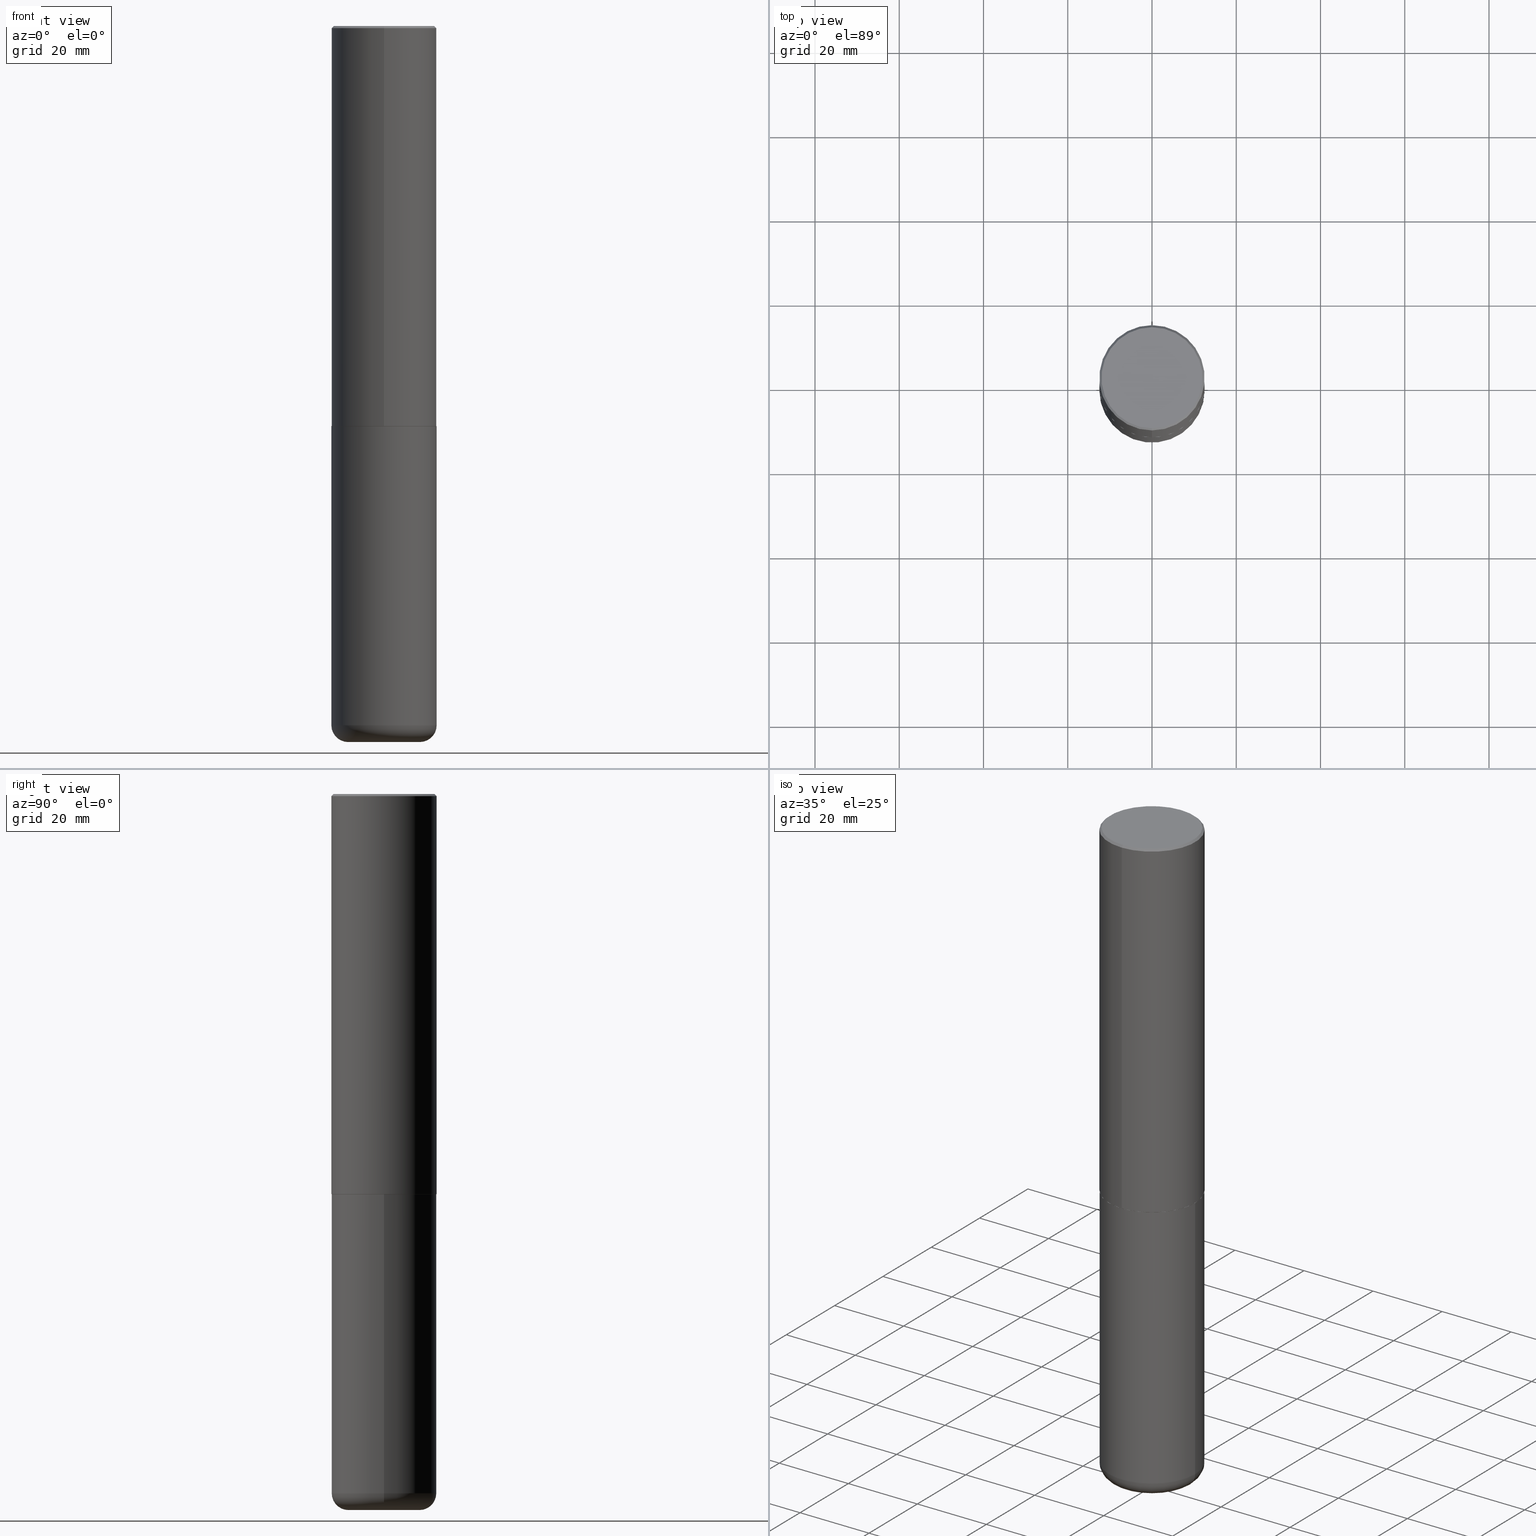
[diagram: canonical four-view strip — front | top / right | iso, engineering-drawing reading convention]
A machine part, canonical four-view strip (front | top / right | iso — engineering-drawing reading convention). The complete STEP part file that produces these views, byte-faithful:
ISO-10303-21;
HEADER;
FILE_DESCRIPTION (( 'STEP AP203' ),
    '1' );
FILE_NAME ('47629.STEP',
    '2024-03-06T19:43:41',
    ( '' ),
    ( '' ),
    'SwSTEP 2.0',
    'SolidWorks 2023',
    '' );
FILE_SCHEMA (( 'CONFIG_CONTROL_DESIGN' ));
ENDSEC;

DATA;
#1 = VERTEX_POINT ( 'NONE', #140 ) ;
#2 = CIRCLE ( 'NONE', #259, 0.4921500000000003650 ) ;
#3 = ORIENTED_EDGE ( 'NONE', *, *, #57, .F. ) ;
#4 = DIRECTION ( 'NONE',  ( -6.982962677686265922E-15, -1.000000000000000000, 3.337287582609300506E-15 ) ) ;
#5 = FACE_OUTER_BOUND ( 'NONE', #368, .T. ) ;
#6 = AXIS2_PLACEMENT_3D ( 'NONE', #393, #176, #395 ) ;
#7 = CIRCLE ( 'NONE', #226, 0.4921499999999999764 ) ;
#8 = EDGE_CURVE ( 'NONE', #254, #222, #314, .T. ) ;
#9 = DIRECTION ( 'NONE',  ( -2.445468806185136597E-29, 3.491481338843145583E-15, 1.000000000000000000 ) ) ;
#10 =( GEOMETRIC_REPRESENTATION_CONTEXT ( 3 ) GLOBAL_UNCERTAINTY_ASSIGNED_CONTEXT ( ( #92 ) ) GLOBAL_UNIT_ASSIGNED_CONTEXT ( ( #315, #375, #111 ) ) REPRESENTATION_CONTEXT ( 'NONE', 'WORKASPACE' ) );
#11 = CARTESIAN_POINT ( 'NONE',  ( 9.148197060908621523E-29, -1.305576962313420868E-14, -3.740099999999999980 ) ) ;
#12 = DIRECTION ( 'NONE',  ( -6.982962677686265922E-15, -1.000000000000000000, 3.337287582609300506E-15 ) ) ;
#13 = APPROVAL ( #158, 'UNSPECIFIED' ) ;
#14 = DIRECTION ( 'NONE',  ( -2.445468806185136597E-29, 3.491481338843145583E-15, 1.000000000000000000 ) ) ;
#15 = DIRECTION ( 'NONE',  ( -4.937700262167413974E-15, -0.7071067811869555797, 0.7071067811861394548 ) ) ;
#16 = DIRECTION ( 'NONE',  ( 5.024295867790978808E-15, 0.7071067811869604647, 0.7071067811861345698 ) ) ;
#17 = CIRCLE ( 'NONE', #252, 0.4721499999999996255 ) ;
#18 = ADVANCED_FACE ( 'NONE', ( #391 ), #272, .T. ) ;
#19 = DIRECTION ( 'NONE',  ( -6.982962677686265922E-15, -1.000000000000000000, 3.486624039460257331E-15 ) ) ;
#20 = PERSON_AND_ORGANIZATION ( #46, #76 ) ;
#21 = DIRECTION ( 'NONE',  ( -2.445976594451651952E-29, 3.490754157143982552E-15, 1.000000000000000000 ) ) ;
#22 = SECURITY_CLASSIFICATION_LEVEL ( 'unclassified' ) ;
#23 = CARTESIAN_POINT ( 'NONE',  ( 0.4921499999999999764, -1.649515443723054663E-14, -3.740100000000000424 ) ) ;
#24 = CARTESIAN_POINT ( 'NONE',  ( 1.598211683594234343E-28, -2.281822714187549288E-14, -6.535400000000000098 ) ) ;
#25 = APPROVAL_DATE_TIME ( #378, #13 ) ;
#26 = EDGE_CURVE ( 'NONE', #62, #165, #193, .T. ) ;
#27 = ADVANCED_FACE ( 'NONE', ( #206 ), #151, .T. ) ;
#28 = ORIENTED_EDGE ( 'NONE', *, *, #236, .T. ) ;
#29 = AXIS2_PLACEMENT_3D ( 'NONE', #225, #144, #388 ) ;
#30 = ADVANCED_FACE ( 'NONE', ( #361 ), #72, .T. ) ;
#31 = EDGE_LOOP ( 'NONE', ( #3, #386, #28, #380 ) ) ;
#32 = EDGE_LOOP ( 'NONE', ( #292, #293, #229, #114 ) ) ;
#33 = ORIENTED_EDGE ( 'NONE', *, *, #208, .T. ) ;
#34 = AXIS2_PLACEMENT_3D ( 'NONE', #283, #121, #413 ) ;
#35 = VERTEX_POINT ( 'NONE', #398 ) ;
#36 = ADVANCED_FACE ( 'NONE', ( #203 ), #282, .T. ) ;
#37 = CARTESIAN_POINT ( 'NONE',  ( 0.4921499999999999764, -2.625489222369879024E-14, -6.535400000000000098 ) ) ;
#38 = MANIFOLD_SOLID_BREP ( 'Body-Move/Copy2[1]', #289 ) ;
#39 = FACE_OUTER_BOUND ( 'NONE', #127, .T. ) ;
#40 = DIRECTION ( 'NONE',  ( -2.445976594451651952E-29, 3.490754157143982552E-15, 1.000000000000000000 ) ) ;
#41 = DIRECTION ( 'NONE',  ( 1.000000000000000000, 0.000000000000000000, 0.000000000000000000 ) ) ;
#42 = MANIFOLD_SOLID_BREP ( 'Body-Move/Copy2[2]', #74 ) ;
#43 = AXIS2_PLACEMENT_3D ( 'NONE', #401, #215, #182 ) ;
#44 = EDGE_CURVE ( 'NONE', #35, #353, #246, .T. ) ;
#45 = DIRECTION ( 'NONE',  ( -2.445468806185136597E-29, 3.491481338843145583E-15, 1.000000000000000000 ) ) ;
#46 = PERSON ( 'UNSPECIFIED', 'UNSPECIFIED', 'UNSPECIFIED', ('UNSPECIFIED'), ('UNSPECIFIED'), ('UNSPECIFIED') ) ;
#47 = CARTESIAN_POINT ( 'NONE',  ( 0.000000000000000000, 0.000000000000000000, 0.000000000000000000 ) ) ;
#48 = CARTESIAN_POINT ( 'NONE',  ( 9.148197060908621523E-29, -1.305576962313420868E-14, -3.740099999999999980 ) ) ;
#49 = APPROVAL ( #354, 'UNSPECIFIED' ) ;
#50 = DIRECTION ( 'NONE',  ( -2.445976594451651952E-29, 3.490754157143982552E-15, 1.000000000000000000 ) ) ;
#51 = AXIS2_PLACEMENT_3D ( 'NONE', #267, #363, #77 ) ;
#52 = EDGE_LOOP ( 'NONE', ( #230, #160, #227, #196 ) ) ;
#53 = DIRECTION ( 'NONE',  ( 7.105427357601001859E-15, 1.000000000000000000, -3.491481338843145583E-15 ) ) ;
#54 = PERSON_AND_ORGANIZATION ( #46, #76 ) ;
#55 = FACE_OUTER_BOUND ( 'NONE', #416, .T. ) ;
#56 = COORDINATED_UNIVERSAL_TIME_OFFSET ( 5, 0, .BEHIND. ) ;
#57 = EDGE_CURVE ( 'NONE', #307, #1, #105, .T. ) ;
#58 = CARTESIAN_POINT ( 'NONE',  ( -0.3346499999999999475, -2.044039587665432153E-14, -6.535400000000000098 ) ) ;
#59 = APPLICATION_PROTOCOL_DEFINITION ( 'international standard', 'config_control_design', 1994, #137 ) ;
#60 = ORIENTED_EDGE ( 'NONE', *, *, #320, .T. ) ;
#61 = PERSON_AND_ORGANIZATION_ROLE ( 'creator' ) ;
#62 = VERTEX_POINT ( 'NONE', #103 ) ;
#63 = ORIENTED_EDGE ( 'NONE', *, *, #236, .F. ) ;
#64 = EDGE_LOOP ( 'NONE', ( #33, #260 ) ) ;
#65 = APPROVAL ( #87, 'UNSPECIFIED' ) ;
#66 = ORIENTED_EDGE ( 'NONE', *, *, #255, .T. ) ;
#67 = DIRECTION ( 'NONE',  ( -2.445468806185136597E-29, 3.491481338843145583E-15, 1.000000000000000000 ) ) ;
#68 = CIRCLE ( 'NONE', #104, 0.4921499999999999209 ) ;
#69 = LOCAL_TIME ( 14, 43, 41.00000000000000000, #250 ) ;
#70 = DIRECTION ( 'NONE',  ( 1.000000000000000000, -6.982962677686268288E-15, 4.883557194083113462E-29 ) ) ;
#71 = CARTESIAN_POINT ( 'NONE',  ( 9.145751084314172604E-29, -1.305227886897706845E-14, -3.739100000000000534 ) ) ;
#72 = CYLINDRICAL_SURFACE ( 'NONE', #290, 0.4921499999999999764 ) ;
#73 = DIRECTION ( 'NONE',  ( -6.982962677686265922E-15, -1.000000000000000000, 3.490754157143982552E-15 ) ) ;
#74 = CLOSED_SHELL ( 'NONE', ( #383, #18, #389, #170, #120, #27, #418, #239 ) ) ;
#75 = VECTOR ( 'NONE', #408, 39.37007874015748143 ) ;
#76 = ORGANIZATION ( 'UNSPECIFIED', 'UNSPECIFIED', '' ) ;
#77 = DIRECTION ( 'NONE',  ( 1.000000000000000000, -6.982962677686265133E-15, 0.000000000000000000 ) ) ;
#78 = CYLINDRICAL_SURFACE ( 'NONE', #117, 0.4921500000000000874 ) ;
#79 = PERSON_AND_ORGANIZATION ( #46, #76 ) ;
#80 = LINE ( 'NONE', #285, #75 ) ;
#81 = DIMENSIONAL_EXPONENTS ( 1.000000000000000000, 0.000000000000000000, 0.000000000000000000, 0.000000000000000000, 0.000000000000000000, 0.000000000000000000, 0.000000000000000000 ) ;
#82 = ORIENTED_EDGE ( 'NONE', *, *, #168, .F. ) ;
#83 = CALENDAR_DATE ( 2024, 6, 3 ) ;
#84 = CARTESIAN_POINT ( 'NONE',  ( 3.489830646685823002E-15, 0.4911499999999869304, -3.740100000000001312 ) ) ;
#85 = AXIS2_PLACEMENT_3D ( 'NONE', #338, #14, #400 ) ;
#86 = PRODUCT_DEFINITION_FORMATION_WITH_SPECIFIED_SOURCE ( 'ANY', '', #379, .NOT_KNOWN. ) ;
#87 = APPROVAL_STATUS ( 'not_yet_approved' ) ;
#88 = CARTESIAN_POINT ( 'NONE',  ( -0.4921499999999999764, -1.444142217459804055E-14, -3.740100000000000424 ) ) ;
#89 = EDGE_CURVE ( 'NONE', #192, #326, #410, .T. ) ;
#90 = CARTESIAN_POINT ( 'NONE',  ( 3.496936074043333291E-15, 0.4921500000000000874, -1.717974658438411319E-15 ) ) ;
#91 = CALENDAR_DATE ( 2024, 6, 3 ) ;
#92 = UNCERTAINTY_MEASURE_WITH_UNIT (LENGTH_MEASURE( 1.000000000000000082E-05 ), #315, 'distance_accuracy_value', 'NONE');
#93 = AXIS2_PLACEMENT_3D ( 'NONE', #271, #403, #269 ) ;
#94 = PERSON_AND_ORGANIZATION ( #46, #76 ) ;
#95 = CC_DESIGN_APPROVAL ( #13, ( #304 ) ) ;
#96 = ORIENTED_EDGE ( 'NONE', *, *, #312, .T. ) ;
#97 = DIRECTION ( 'NONE',  ( -2.445468806185136597E-29, 3.491481338843145583E-15, 1.000000000000000000 ) ) ;
#98 = ORIENTED_EDGE ( 'NONE', *, *, #195, .T. ) ;
#99 = AXIS2_PLACEMENT_3D ( 'NONE', #341, #21, #277 ) ;
#100 = ORIENTED_EDGE ( 'NONE', *, *, #263, .T. ) ;
#101 = EDGE_CURVE ( 'NONE', #192, #197, #172, .T. ) ;
#102 = ORIENTED_EDGE ( 'NONE', *, *, #26, .T. ) ;
#103 = CARTESIAN_POINT ( 'NONE',  ( -3.429682119145517860E-15, -0.4911500000000130206, -3.740099999999998204 ) ) ;
#104 = AXIS2_PLACEMENT_3D ( 'NONE', #243, #50, #19 ) ;
#105 = LINE ( 'NONE', #108, #238 ) ;
#106 = CARTESIAN_POINT ( 'NONE',  ( 0.000000000000000000, 0.000000000000000000, 0.000000000000000000 ) ) ;
#107 = DIRECTION ( 'NONE',  ( -6.982962677686265922E-15, -1.000000000000000000, 3.337287582609300506E-15 ) ) ;
#108 = CARTESIAN_POINT ( 'NONE',  ( -3.376394089603257868E-15, -0.4921499999999999764, -0.01999999999999839059 ) ) ;
#109 = CARTESIAN_POINT ( 'NONE',  ( 9.148197060908621523E-29, -1.305576962313420868E-14, -3.740099999999999980 ) ) ;
#110 = DIRECTION ( 'NONE',  ( 2.445976594451651392E-29, -3.490754157143982552E-15, -1.000000000000000000 ) ) ;
#111 =( NAMED_UNIT ( * ) SI_UNIT ( $, .STERADIAN. ) SOLID_ANGLE_UNIT ( ) );
#112 = PLANE ( 'NONE',  #136 ) ;
#113 = DIRECTION ( 'NONE',  ( 1.000000000000000000, -6.982962677686265133E-15, 0.000000000000000000 ) ) ;
#114 = ORIENTED_EDGE ( 'NONE', *, *, #263, .F. ) ;
#115 = PRODUCT_DEFINITION_SHAPE ( 'NONE', 'NONE',  #304 ) ;
#116 = DIRECTION ( 'NONE',  ( -2.445468806185136597E-29, 3.491481338843145583E-15, 1.000000000000000000 ) ) ;
#117 = AXIS2_PLACEMENT_3D ( 'NONE', #47, #40, #301 ) ;
#118 = APPROVAL_PERSON_ORGANIZATION ( #94, #49, #402 ) ;
#119 = PERSON_AND_ORGANIZATION_ROLE ( 'classification_officer' ) ;
#120 = ADVANCED_FACE ( 'NONE', ( #39 ), #78, .T. ) ;
#121 = DIRECTION ( 'NONE',  ( -6.982962677686266711E-15, -1.000000000000000000, 3.491481338843145583E-15 ) ) ;
#122 = EDGE_CURVE ( 'NONE', #165, #62, #124, .T. ) ;
#123 = ORIENTED_EDGE ( 'NONE', *, *, #184, .F. ) ;
#124 = CIRCLE ( 'NONE', #212, 0.4911499999999999755 ) ;
#125 = ORIENTED_EDGE ( 'NONE', *, *, #191, .T. ) ;
#126 = CARTESIAN_POINT ( 'NONE',  ( 3.436665081823295777E-15, 0.4921499999999998098, -0.02000000000000182188 ) ) ;
#127 = EDGE_LOOP ( 'NONE', ( #405, #146, #256, #194 ) ) ;
#128 = EDGE_LOOP ( 'NONE', ( #169, #352, #166, #63 ) ) ;
#129 = VECTOR ( 'NONE', #16, 39.37007874015748143 ) ;
#130 = EDGE_CURVE ( 'NONE', #62, #35, #133, .T. ) ;
#131 = CC_DESIGN_SECURITY_CLASSIFICATION ( #213, ( #86 ) ) ;
#132 = EDGE_LOOP ( 'NONE', ( #123, #98, #100, #321 ) ) ;
#133 = LINE ( 'NONE', #232, #204 ) ;
#134 = ADVANCED_BREP_SHAPE_REPRESENTATION ( '47629', ( #38, #42, #253 ), #10 ) ;
#135 = CYLINDRICAL_SURFACE ( 'NONE', #355, 0.4921499999999999764 ) ;
#136 = AXIS2_PLACEMENT_3D ( 'NONE', #11, #139, #73 ) ;
#137 = APPLICATION_CONTEXT ( 'configuration controlled 3d designs of mechanical parts and assemblies' ) ;
#138 = DIRECTION ( 'NONE',  ( 1.000000000000000000, -6.982962677686265922E-15, 4.876176775795935793E-29 ) ) ;
#139 = DIRECTION ( 'NONE',  ( -2.445976594451651392E-29, 3.490754157143982552E-15, 1.000000000000000000 ) ) ;
#140 = CARTESIAN_POINT ( 'NONE',  ( -3.376394089603257868E-15, -0.4921499999999999764, -0.01999999999999839059 ) ) ;
#141 = CARTESIAN_POINT ( 'NONE',  ( -5.420756467185317189E-45, 7.736185299407739239E-31, 2.216193106459615290E-16 ) ) ;
#142 = MECHANICAL_CONTEXT ( 'NONE', #407, 'mechanical' ) ;
#143 = CIRCLE ( 'NONE', #181, 0.3346499999999999475 ) ;
#144 = DIRECTION ( 'NONE',  ( -2.445976594451651952E-29, 3.490754157143982552E-15, 1.000000000000000000 ) ) ;
#145 = DIRECTION ( 'NONE',  ( -1.000000000000000000, 6.982962677686265922E-15, -4.876176775795935793E-29 ) ) ;
#146 = ORIENTED_EDGE ( 'NONE', *, *, #164, .T. ) ;
#147 = PERSON_AND_ORGANIZATION ( #46, #76 ) ;
#148 = EDGE_CURVE ( 'NONE', #307, #330, #17, .T. ) ;
#149 = DIRECTION ( 'NONE',  ( -1.000000000000000000, 7.105427357600989237E-15, 0.000000000000000000 ) ) ;
#150 = PERSON_AND_ORGANIZATION ( #46, #76 ) ;
#151 = CONICAL_SURFACE ( 'NONE', #199, 0.4911499999999999755, 0.7853981633980288146 ) ;
#152 = PLANE ( 'NONE',  #316 ) ;
#153 = LOCAL_TIME ( 14, 43, 41.00000000000000000, #318 ) ;
#154 = CARTESIAN_POINT ( 'NONE',  ( -0.3346499999999999475, -2.015579762767713625E-14, -6.692899999999999849 ) ) ;
#155 = COORDINATED_UNIVERSAL_TIME_OFFSET ( 5, 0, .BEHIND. ) ;
#156 = ADVANCED_FACE ( 'NONE', ( #5 ), #135, .T. ) ;
#157 = EDGE_LOOP ( 'NONE', ( #258, #286 ) ) ;
#158 = APPROVAL_STATUS ( 'not_yet_approved' ) ;
#159 = CC_DESIGN_PERSON_AND_ORGANIZATION_ASSIGNMENT ( #54, #61, ( #304 ) ) ;
#160 = ORIENTED_EDGE ( 'NONE', *, *, #89, .T. ) ;
#161 = AXIS2_PLACEMENT_3D ( 'NONE', #24, #97, #113 ) ;
#162 = LOCAL_TIME ( 14, 43, 41.00000000000000000, #219 ) ;
#163 = VERTEX_POINT ( 'NONE', #359 ) ;
#164 = EDGE_CURVE ( 'NONE', #353, #35, #2, .T. ) ;
#165 = VERTEX_POINT ( 'NONE', #280 ) ;
#166 = ORIENTED_EDGE ( 'NONE', *, *, #241, .T. ) ;
#167 = AXIS2_PLACEMENT_3D ( 'NONE', #231, #67, #200 ) ;
#168 = EDGE_CURVE ( 'NONE', #326, #261, #80, .T. ) ;
#169 = ORIENTED_EDGE ( 'NONE', *, *, #148, .F. ) ;
#170 = ADVANCED_FACE ( 'NONE', ( #306 ), #174, .T. ) ;
#171 = CARTESIAN_POINT ( 'NONE',  ( 3.366835455046432084E-15, 0.4721499999999996255, -1.426540264649568516E-15 ) ) ;
#172 = LINE ( 'NONE', #234, #299 ) ;
#173 = DIRECTION ( 'NONE',  ( -2.445976594451651952E-29, 3.490754157143982552E-15, 1.000000000000000000 ) ) ;
#174 = CONICAL_SURFACE ( 'NONE', #43, 0.4921499999999999209, 0.7853981633974467247 ) ;
#175 = APPROVAL_PERSON_ORGANIZATION ( #412, #13, #372 ) ;
#176 = DIRECTION ( 'NONE',  ( -2.445976594451651952E-29, 3.490754157143982552E-15, 1.000000000000000000 ) ) ;
#177 = APPLICATION_PROTOCOL_DEFINITION ( 'international standard', 'config_control_design', 1994, #407 ) ;
#178 = ORIENTED_EDGE ( 'NONE', *, *, #208, .F. ) ;
#179 = EDGE_CURVE ( 'NONE', #163, #1, #324, .T. ) ;
#180 = DIRECTION ( 'NONE',  ( 2.438088387897960049E-29, -3.491481338843145188E-15, -1.000000000000000000 ) ) ;
#181 = AXIS2_PLACEMENT_3D ( 'NONE', #411, #116, #311 ) ;
#182 = DIRECTION ( 'NONE',  ( 6.982962677686265922E-15, 1.000000000000000000, -3.486624039460257331E-15 ) ) ;
#183 = ORIENTED_EDGE ( 'NONE', *, *, #148, .T. ) ;
#184 = EDGE_CURVE ( 'NONE', #222, #192, #349, .T. ) ;
#185 = PLANE ( 'NONE',  #345 ) ;
#186 = PERSON_AND_ORGANIZATION_ROLE ( 'design_supplier' ) ;
#187 = CARTESIAN_POINT ( 'NONE',  ( 3.297005828269567997E-15, 0.4721499999999996255, -1.537349919972549256E-15 ) ) ;
#188 = CIRCLE ( 'NONE', #29, 0.4721499999999996255 ) ;
#189 = PLANE ( 'NONE',  #364 ) ;
#190 = APPROVAL_DATE_TIME ( #279, #65 ) ;
#191 = EDGE_CURVE ( 'NONE', #353, #163, #348, .T. ) ;
#192 = VERTEX_POINT ( 'NONE', #209 ) ;
#193 = CIRCLE ( 'NONE', #245, 0.4911499999999999755 ) ;
#194 = ORIENTED_EDGE ( 'NONE', *, *, #179, .F. ) ;
#195 = EDGE_CURVE ( 'NONE', #222, #254, #143, .T. ) ;
#196 = ORIENTED_EDGE ( 'NONE', *, *, #322, .F. ) ;
#197 = VERTEX_POINT ( 'NONE', #88 ) ;
#198 = ORIENTED_EDGE ( 'NONE', *, *, #284, .F. ) ;
#199 = AXIS2_PLACEMENT_3D ( 'NONE', #235, #297, #12 ) ;
#200 = DIRECTION ( 'NONE',  ( 1.000000000000000000, -6.982962677686265922E-15, 0.000000000000000000 ) ) ;
#201 = DIRECTION ( 'NONE',  ( -2.445976594451651952E-29, 3.490754157143982552E-15, 1.000000000000000000 ) ) ;
#202 = FACE_OUTER_BOUND ( 'NONE', #291, .T. ) ;
#203 = FACE_OUTER_BOUND ( 'NONE', #32, .T. ) ;
#204 = VECTOR ( 'NONE', #15, 39.37007874015748143 ) ;
#205 = CC_DESIGN_PERSON_AND_ORGANIZATION_ASSIGNMENT ( #79, #333, ( #379 ) ) ;
#206 = FACE_OUTER_BOUND ( 'NONE', #377, .T. ) ;
#207 = DIRECTION ( 'NONE',  ( 1.000000000000000000, -6.982962677686265922E-15, 4.876176775795935793E-29 ) ) ;
#208 = EDGE_CURVE ( 'NONE', #261, #197, #7, .T. ) ;
#209 = CARTESIAN_POINT ( 'NONE',  ( -0.4921499999999999764, -1.932129106783216551E-14, -6.535400000000000098 ) ) ;
#210 = ORIENTED_EDGE ( 'NONE', *, *, #130, .T. ) ;
#211 = ADVANCED_FACE ( 'NONE', ( #343 ), #185, .T. ) ;
#212 = AXIS2_PLACEMENT_3D ( 'NONE', #48, #296, #4 ) ;
#213 = SECURITY_CLASSIFICATION ( '', '', #22 ) ;
#214 = SHAPE_DEFINITION_REPRESENTATION ( #115, #134 ) ;
#215 = DIRECTION ( 'NONE',  ( 2.445976594451651952E-29, -3.490754157143982552E-15, -1.000000000000000000 ) ) ;
#216 = DATE_TIME_ROLE ( 'creation_date' ) ;
#217 = CARTESIAN_POINT ( 'NONE',  ( 1.636727817291649966E-28, -2.336813545274328780E-14, -6.692899999999999849 ) ) ;
#218 = LINE ( 'NONE', #319, #233 ) ;
#219 = COORDINATED_UNIVERSAL_TIME_OFFSET ( 5, 0, .BEHIND. ) ;
#220 = VECTOR ( 'NONE', #370, 39.37007874015748143 ) ;
#221 = APPROVAL_ROLE ( '' ) ;
#222 = VERTEX_POINT ( 'NONE', #154 ) ;
#223 = ORIENTED_EDGE ( 'NONE', *, *, #44, .T. ) ;
#224 = CC_DESIGN_PERSON_AND_ORGANIZATION_ASSIGNMENT ( #147, #342, ( #86 ) ) ;
#225 = CARTESIAN_POINT ( 'NONE',  ( -5.420756467185317189E-45, 7.736185299407739239E-31, 2.216193106459615290E-16 ) ) ;
#226 = AXIS2_PLACEMENT_3D ( 'NONE', #247, #381, #339 ) ;
#227 = ORIENTED_EDGE ( 'NONE', *, *, #168, .T. ) ;
#228 = AXIS2_PLACEMENT_3D ( 'NONE', #334, #356, #270 ) ;
#229 = ORIENTED_EDGE ( 'NONE', *, *, #312, .F. ) ;
#230 = ORIENTED_EDGE ( 'NONE', *, *, #101, .F. ) ;
#231 = CARTESIAN_POINT ( 'NONE',  ( 9.146297882013029477E-29, -1.305848935540725085E-14, -3.740100000000000424 ) ) ;
#232 = CARTESIAN_POINT ( 'NONE',  ( -3.429682119145517860E-15, -0.4911500000000130206, -3.740099999999998204 ) ) ;
#233 = VECTOR ( 'NONE', #344, 39.37007874015748143 ) ;
#234 = CARTESIAN_POINT ( 'NONE',  ( -0.4921499999999999764, 3.496936074043332897E-15, -2.420853904668951509E-29 ) ) ;
#235 = CARTESIAN_POINT ( 'NONE',  ( 9.148197060908621523E-29, -1.305576962313420868E-14, -3.740099999999999980 ) ) ;
#236 = EDGE_CURVE ( 'NONE', #330, #163, #257, .T. ) ;
#237 = DIRECTION ( 'NONE',  ( -4.851104656540955597E-15, -0.7071067811865487940, -0.7071067811865461294 ) ) ;
#238 = VECTOR ( 'NONE', #237, 39.37007874015748854 ) ;
#239 = ADVANCED_FACE ( 'NONE', ( #55 ), #152, .F. ) ;
#240 = CARTESIAN_POINT ( 'NONE',  ( 1.598211683594234343E-28, -2.281822714187549288E-14, -6.535400000000000098 ) ) ;
#241 = EDGE_CURVE ( 'NONE', #1, #163, #68, .T. ) ;
#242 = DIRECTION ( 'NONE',  ( 6.982962677686265922E-15, 1.000000000000000000, -3.490754157143982552E-15 ) ) ;
#243 = CARTESIAN_POINT ( 'NONE',  ( 4.891953188903329688E-31, -6.981508314288001687E-17, -0.02000000000000010797 ) ) ;
#244 = EDGE_LOOP ( 'NONE', ( #325, #382 ) ) ;
#245 = AXIS2_PLACEMENT_3D ( 'NONE', #109, #298, #107 ) ;
#246 = CIRCLE ( 'NONE', #228, 0.4921500000000003650 ) ;
#247 = CARTESIAN_POINT ( 'NONE',  ( 9.146297882013029477E-29, -1.305848935540725085E-14, -3.740100000000000424 ) ) ;
#248 = DATE_TIME_ROLE ( 'classification_date' ) ;
#249 = CARTESIAN_POINT ( 'NONE',  ( 9.146297882013029477E-29, -1.305848935540725085E-14, -3.740100000000000424 ) ) ;
#250 = COORDINATED_UNIVERSAL_TIME_OFFSET ( 5, 0, .BEHIND. ) ;
#251 = PRODUCT_RELATED_PRODUCT_CATEGORY ( 'detail', '', ( #379 ) ) ;
#252 = AXIS2_PLACEMENT_3D ( 'NONE', #141, #173, #262 ) ;
#253 = AXIS2_PLACEMENT_3D ( 'NONE', #106, #273, #41 ) ;
#254 = VERTEX_POINT ( 'NONE', #313 ) ;
#255 = EDGE_CURVE ( 'NONE', #165, #353, #303, .T. ) ;
#256 = ORIENTED_EDGE ( 'NONE', *, *, #284, .T. ) ;
#257 = LINE ( 'NONE', #126, #220 ) ;
#258 = ORIENTED_EDGE ( 'NONE', *, *, #8, .F. ) ;
#259 = AXIS2_PLACEMENT_3D ( 'NONE', #71, #201, #332 ) ;
#260 = ORIENTED_EDGE ( 'NONE', *, *, #322, .T. ) ;
#261 = VERTEX_POINT ( 'NONE', #23 ) ;
#262 = DIRECTION ( 'NONE',  ( -6.982962677686265922E-15, -1.000000000000000000, 3.490754157143982946E-15 ) ) ;
#263 = EDGE_CURVE ( 'NONE', #254, #326, #417, .T. ) ;
#264 = CARTESIAN_POINT ( 'NONE',  ( 0.000000000000000000, 0.000000000000000000, 0.000000000000000000 ) ) ;
#265 = AXIS2_PLACEMENT_3D ( 'NONE', #300, #366, #331 ) ;
#266 = AXIS2_PLACEMENT_3D ( 'NONE', #397, #362, #274 ) ;
#267 = CARTESIAN_POINT ( 'NONE',  ( 1.598211683594234343E-28, -2.281822714187549288E-14, -6.535400000000000098 ) ) ;
#268 = ADVANCED_FACE ( 'NONE', ( #367 ), #189, .F. ) ;
#269 = DIRECTION ( 'NONE',  ( -6.982962677686265922E-15, -1.000000000000000000, 3.337287582609300506E-15 ) ) ;
#270 = DIRECTION ( 'NONE',  ( -6.982962677686265922E-15, -1.000000000000000000, 3.330506545156063496E-15 ) ) ;
#271 = CARTESIAN_POINT ( 'NONE',  ( 9.148197060908621523E-29, -1.305576962313420868E-14, -3.740099999999999980 ) ) ;
#272 = CYLINDRICAL_SURFACE ( 'NONE', #6, 0.4921500000000000874 ) ;
#273 = DIRECTION ( 'NONE',  ( 0.000000000000000000, 0.000000000000000000, 1.000000000000000000 ) ) ;
#274 = DIRECTION ( 'NONE',  ( 6.982962677686265922E-15, 1.000000000000000000, -3.486624039460257331E-15 ) ) ;
#275 = CC_DESIGN_APPROVAL ( #65, ( #86 ) ) ;
#276 = DATE_AND_TIME ( #83, #153 ) ;
#277 = DIRECTION ( 'NONE',  ( -6.982962677686265922E-15, -1.000000000000000000, 3.486624039460257331E-15 ) ) ;
#278 = DIRECTION ( 'NONE',  ( -1.000000000000000000, 6.982962677686265922E-15, -4.876176775795935793E-29 ) ) ;
#279 = DATE_AND_TIME ( #406, #317 ) ;
#280 = CARTESIAN_POINT ( 'NONE',  ( 3.493383360364624690E-15, 0.4911499999999869304, -3.740100000000001312 ) ) ;
#281 = LENGTH_MEASURE_WITH_UNIT ( LENGTH_MEASURE( 0.02539999999999999897 ), #309 );
#282 = TOROIDAL_SURFACE ( 'NONE', #384, 0.3346499999999999475, 0.1574999999999998623 ) ;
#283 = CARTESIAN_POINT ( 'NONE',  ( 0.3346499999999999475, -2.515507560196320354E-14, -6.535400000000000098 ) ) ;
#284 = EDGE_CURVE ( 'NONE', #35, #1, #218, .T. ) ;
#285 = CARTESIAN_POINT ( 'NONE',  ( 0.4921499999999999764, -3.436665081823295777E-15, 2.399810400207969603E-29 ) ) ;
#286 = ORIENTED_EDGE ( 'NONE', *, *, #195, .F. ) ;
#287 = PERSON_AND_ORGANIZATION ( #46, #76 ) ;
#288 = CALENDAR_DATE ( 2024, 6, 3 ) ;
#289 = CLOSED_SHELL ( 'NONE', ( #156, #36, #268, #30, #396, #211 ) ) ;
#290 = AXIS2_PLACEMENT_3D ( 'NONE', #337, #45, #207 ) ;
#291 = EDGE_LOOP ( 'NONE', ( #102, #66, #323, #414 ) ) ;
#292 = ORIENTED_EDGE ( 'NONE', *, *, #8, .T. ) ;
#293 = ORIENTED_EDGE ( 'NONE', *, *, #184, .T. ) ;
#294 = CIRCLE ( 'NONE', #167, 0.4921499999999999764 ) ;
#295 = EDGE_LOOP ( 'NONE', ( #223, #125, #346, #198 ) ) ;
#296 = DIRECTION ( 'NONE',  ( -2.445976594451651952E-29, 3.490754157143982552E-15, 1.000000000000000000 ) ) ;
#297 = DIRECTION ( 'NONE',  ( -2.445976594451651952E-29, 3.490754157143982552E-15, 1.000000000000000000 ) ) ;
#298 = DIRECTION ( 'NONE',  ( -2.445976594451651952E-29, 3.490754157143982552E-15, 1.000000000000000000 ) ) ;
#299 = VECTOR ( 'NONE', #336, 39.37007874015748143 ) ;
#300 = CARTESIAN_POINT ( 'NONE',  ( 1.636727817291649966E-28, -2.336813545274328780E-14, -6.692899999999999849 ) ) ;
#301 = DIRECTION ( 'NONE',  ( -6.982962677686265922E-15, -1.000000000000000000, 3.490754157143982552E-15 ) ) ;
#302 = CARTESIAN_POINT ( 'NONE',  ( 3.496936074043380229E-15, 0.4921499999999873198, -3.739100000000002311 ) ) ;
#303 = LINE ( 'NONE', #84, #129 ) ;
#304 = PRODUCT_DEFINITION ( 'UNKNOWN', '', #86, #374 ) ;
#305 = FACE_OUTER_BOUND ( 'NONE', #244, .T. ) ;
#306 = FACE_OUTER_BOUND ( 'NONE', #31, .T. ) ;
#307 = VERTEX_POINT ( 'NONE', #404 ) ;
#308 = CALENDAR_DATE ( 2024, 6, 3 ) ;
#309 =( LENGTH_UNIT ( ) NAMED_UNIT ( * ) SI_UNIT ( $, .METRE. ) );
#310 = APPROVAL_DATE_TIME ( #276, #49 ) ;
#311 = DIRECTION ( 'NONE',  ( 1.000000000000000000, -6.982962677686269077E-15, 0.000000000000000000 ) ) ;
#312 = EDGE_CURVE ( 'NONE', #326, #192, #340, .T. ) ;
#313 = CARTESIAN_POINT ( 'NONE',  ( 0.3346499999999999475, -2.570498391283099847E-14, -6.692899999999999849 ) ) ;
#314 = CIRCLE ( 'NONE', #265, 0.3346499999999999475 ) ;
#315 =( CONVERSION_BASED_UNIT ( 'INCH', #281 ) LENGTH_UNIT ( ) NAMED_UNIT ( #81 ) );
#316 = AXIS2_PLACEMENT_3D ( 'NONE', #187, #110, #242 ) ;
#317 = LOCAL_TIME ( 14, 43, 41.00000000000000000, #155 ) ;
#318 = COORDINATED_UNIVERSAL_TIME_OFFSET ( 5, 0, .BEHIND. ) ;
#319 = CARTESIAN_POINT ( 'NONE',  ( -3.436665081823296565E-15, -0.4921500000000000874, 1.717974658438411319E-15 ) ) ;
#320 = EDGE_CURVE ( 'NONE', #330, #307, #188, .T. ) ;
#321 = ORIENTED_EDGE ( 'NONE', *, *, #89, .F. ) ;
#322 = EDGE_CURVE ( 'NONE', #197, #261, #294, .T. ) ;
#323 = ORIENTED_EDGE ( 'NONE', *, *, #44, .F. ) ;
#324 = CIRCLE ( 'NONE', #99, 0.4921499999999999209 ) ;
#325 = ORIENTED_EDGE ( 'NONE', *, *, #26, .F. ) ;
#326 = VERTEX_POINT ( 'NONE', #37 ) ;
#327 = CC_DESIGN_PERSON_AND_ORGANIZATION_ASSIGNMENT ( #287, #186, ( #86 ) ) ;
#328 = ORIENTED_EDGE ( 'NONE', *, *, #122, .T. ) ;
#329 = TOROIDAL_SURFACE ( 'NONE', #85, 0.3346499999999999475, 0.1574999999999998623 ) ;
#330 = VERTEX_POINT ( 'NONE', #171 ) ;
#331 = DIRECTION ( 'NONE',  ( 1.000000000000000000, -6.982962677686269077E-15, 0.000000000000000000 ) ) ;
#332 = DIRECTION ( 'NONE',  ( -6.982962677686265922E-15, -1.000000000000000000, 3.330506545156063496E-15 ) ) ;
#333 = PERSON_AND_ORGANIZATION_ROLE ( 'design_owner' ) ;
#334 = CARTESIAN_POINT ( 'NONE',  ( 9.145751084314172604E-29, -1.305227886897706845E-14, -3.739100000000000534 ) ) ;
#335 = VECTOR ( 'NONE', #369, 39.37007874015748143 ) ;
#336 = DIRECTION ( 'NONE',  ( -2.445468806185136877E-29, 3.491481338843145188E-15, 1.000000000000000000 ) ) ;
#337 = CARTESIAN_POINT ( 'NONE',  ( 0.000000000000000000, 0.000000000000000000, 0.000000000000000000 ) ) ;
#338 = CARTESIAN_POINT ( 'NONE',  ( 1.598211683594234343E-28, -2.281822714187549288E-14, -6.535400000000000098 ) ) ;
#339 = DIRECTION ( 'NONE',  ( 1.000000000000000000, -6.982962677686265922E-15, 0.000000000000000000 ) ) ;
#340 = CIRCLE ( 'NONE', #161, 0.4921500000000000319 ) ;
#341 = CARTESIAN_POINT ( 'NONE',  ( 4.891953188903329688E-31, -6.981508314288001687E-17, -0.02000000000000010797 ) ) ;
#342 = PERSON_AND_ORGANIZATION_ROLE ( 'creator' ) ;
#343 = FACE_OUTER_BOUND ( 'NONE', #157, .T. ) ;
#344 = DIRECTION ( 'NONE',  ( -2.445976594451651672E-29, 3.490754157143982552E-15, 1.000000000000000000 ) ) ;
#345 = AXIS2_PLACEMENT_3D ( 'NONE', #217, #180, #145 ) ;
#346 = ORIENTED_EDGE ( 'NONE', *, *, #241, .F. ) ;
#347 = ORIENTED_EDGE ( 'NONE', *, *, #255, .F. ) ;
#348 = LINE ( 'NONE', #90, #335 ) ;
#349 = CIRCLE ( 'NONE', #409, 0.1574999999999998901 ) ;
#350 = ORIENTED_EDGE ( 'NONE', *, *, #164, .F. ) ;
#351 = CC_DESIGN_DATE_AND_TIME_ASSIGNMENT ( #373, #216, ( #304 ) ) ;
#352 = ORIENTED_EDGE ( 'NONE', *, *, #57, .T. ) ;
#353 = VERTEX_POINT ( 'NONE', #302 ) ;
#354 = APPROVAL_STATUS ( 'not_yet_approved' ) ;
#355 = AXIS2_PLACEMENT_3D ( 'NONE', #264, #9, #138 ) ;
#356 = DIRECTION ( 'NONE',  ( -2.445976594451651952E-29, 3.490754157143982552E-15, 1.000000000000000000 ) ) ;
#357 = APPROVAL_PERSON_ORGANIZATION ( #20, #65, #221 ) ;
#358 = CC_DESIGN_PERSON_AND_ORGANIZATION_ASSIGNMENT ( #150, #119, ( #213 ) ) ;
#359 = CARTESIAN_POINT ( 'NONE',  ( 3.436665081823295777E-15, 0.4921499999999998098, -0.02000000000000182188 ) ) ;
#360 = FACE_OUTER_BOUND ( 'NONE', #132, .T. ) ;
#361 = FACE_OUTER_BOUND ( 'NONE', #52, .T. ) ;
#362 = DIRECTION ( 'NONE',  ( 2.445976594451651952E-29, -3.490754157143982552E-15, -1.000000000000000000 ) ) ;
#363 = DIRECTION ( 'NONE',  ( -2.445468806185136597E-29, 3.491481338843145583E-15, 1.000000000000000000 ) ) ;
#364 = AXIS2_PLACEMENT_3D ( 'NONE', #249, #371, #278 ) ;
#365 = CC_DESIGN_DATE_AND_TIME_ASSIGNMENT ( #415, #248, ( #213 ) ) ;
#366 = DIRECTION ( 'NONE',  ( -2.445468806185136597E-29, 3.491481338843145583E-15, 1.000000000000000000 ) ) ;
#367 = FACE_OUTER_BOUND ( 'NONE', #64, .T. ) ;
#368 = EDGE_LOOP ( 'NONE', ( #96, #387, #178, #82 ) ) ;
#369 = DIRECTION ( 'NONE',  ( -2.445976594451651672E-29, 3.490754157143982552E-15, 1.000000000000000000 ) ) ;
#370 = DIRECTION ( 'NONE',  ( 4.937700262164540154E-15, 0.7071067811865440200, -0.7071067811865511255 ) ) ;
#371 = DIRECTION ( 'NONE',  ( 2.438088387897960049E-29, -3.491481338843145188E-15, -1.000000000000000000 ) ) ;
#372 = APPROVAL_ROLE ( '' ) ;
#373 = DATE_AND_TIME ( #308, #392 ) ;
#374 = DESIGN_CONTEXT ( 'detailed design', #137, 'design' ) ;
#375 =( NAMED_UNIT ( * ) PLANE_ANGLE_UNIT ( ) SI_UNIT ( $, .RADIAN. ) );
#376 = CONICAL_SURFACE ( 'NONE', #266, 0.4921499999999999209, 0.7853981633974467247 ) ;
#377 = EDGE_LOOP ( 'NONE', ( #347, #328, #210, #350 ) ) ;
#378 = DATE_AND_TIME ( #288, #69 ) ;
#379 = PRODUCT ( '47629', '47629', '', ( #142 ) ) ;
#380 = ORIENTED_EDGE ( 'NONE', *, *, #179, .T. ) ;
#381 = DIRECTION ( 'NONE',  ( -2.445468806185136597E-29, 3.491481338843145583E-15, 1.000000000000000000 ) ) ;
#382 = ORIENTED_EDGE ( 'NONE', *, *, #122, .F. ) ;
#383 = ADVANCED_FACE ( 'NONE', ( #202 ), #399, .T. ) ;
#384 = AXIS2_PLACEMENT_3D ( 'NONE', #240, #390, #70 ) ;
#385 = CC_DESIGN_APPROVAL ( #49, ( #213 ) ) ;
#386 = ORIENTED_EDGE ( 'NONE', *, *, #320, .F. ) ;
#387 = ORIENTED_EDGE ( 'NONE', *, *, #101, .T. ) ;
#388 = DIRECTION ( 'NONE',  ( -6.982962677686265922E-15, -1.000000000000000000, 3.490754157143982946E-15 ) ) ;
#389 = ADVANCED_FACE ( 'NONE', ( #394 ), #376, .T. ) ;
#390 = DIRECTION ( 'NONE',  ( -2.445468806185136597E-29, 3.491481338843145583E-15, 1.000000000000000000 ) ) ;
#391 = FACE_OUTER_BOUND ( 'NONE', #295, .T. ) ;
#392 = LOCAL_TIME ( 14, 43, 41.00000000000000000, #56 ) ;
#393 = CARTESIAN_POINT ( 'NONE',  ( 0.000000000000000000, 0.000000000000000000, 0.000000000000000000 ) ) ;
#394 = FACE_OUTER_BOUND ( 'NONE', #128, .T. ) ;
#395 = DIRECTION ( 'NONE',  ( -6.982962677686265922E-15, -1.000000000000000000, 3.490754157143982552E-15 ) ) ;
#396 = ADVANCED_FACE ( 'NONE', ( #360 ), #329, .T. ) ;
#397 = CARTESIAN_POINT ( 'NONE',  ( 4.891953188903329688E-31, -6.981508314288001687E-17, -0.02000000000000010797 ) ) ;
#398 = CARTESIAN_POINT ( 'NONE',  ( -3.436665081823207030E-15, -0.4921500000000134101, -3.739099999999998758 ) ) ;
#399 = CONICAL_SURFACE ( 'NONE', #93, 0.4911499999999999755, 0.7853981633980288146 ) ;
#400 = DIRECTION ( 'NONE',  ( 1.000000000000000000, -6.982962677686268288E-15, 4.883557194083113462E-29 ) ) ;
#401 = CARTESIAN_POINT ( 'NONE',  ( 4.891953188903329688E-31, -6.981508314288001687E-17, -0.02000000000000010797 ) ) ;
#402 = APPROVAL_ROLE ( '' ) ;
#403 = DIRECTION ( 'NONE',  ( -2.445976594451651952E-29, 3.490754157143982552E-15, 1.000000000000000000 ) ) ;
#404 = CARTESIAN_POINT ( 'NONE',  ( -3.307789109625541747E-15, -0.4721499999999996255, 1.869778885941491673E-15 ) ) ;
#405 = ORIENTED_EDGE ( 'NONE', *, *, #191, .F. ) ;
#406 = CALENDAR_DATE ( 2024, 6, 3 ) ;
#407 = APPLICATION_CONTEXT ( 'configuration controlled 3d designs of mechanical parts and assemblies' ) ;
#408 = DIRECTION ( 'NONE',  ( -2.445468806185136877E-29, 3.491481338843145188E-15, 1.000000000000000000 ) ) ;
#409 = AXIS2_PLACEMENT_3D ( 'NONE', #58, #53, #149 ) ;
#410 = CIRCLE ( 'NONE', #51, 0.4921500000000000319 ) ;
#411 = CARTESIAN_POINT ( 'NONE',  ( 1.636727817291649966E-28, -2.336813545274328780E-14, -6.692899999999999849 ) ) ;
#412 = PERSON_AND_ORGANIZATION ( #46, #76 ) ;
#413 = DIRECTION ( 'NONE',  ( 1.000000000000000000, -6.982962677686266711E-15, 0.000000000000000000 ) ) ;
#414 = ORIENTED_EDGE ( 'NONE', *, *, #130, .F. ) ;
#415 = DATE_AND_TIME ( #91, #162 ) ;
#416 = EDGE_LOOP ( 'NONE', ( #60, #183 ) ) ;
#417 = CIRCLE ( 'NONE', #34, 0.1574999999999998901 ) ;
#418 = ADVANCED_FACE ( 'NONE', ( #305 ), #112, .F. ) ;
ENDSEC;
END-ISO-10303-21;
